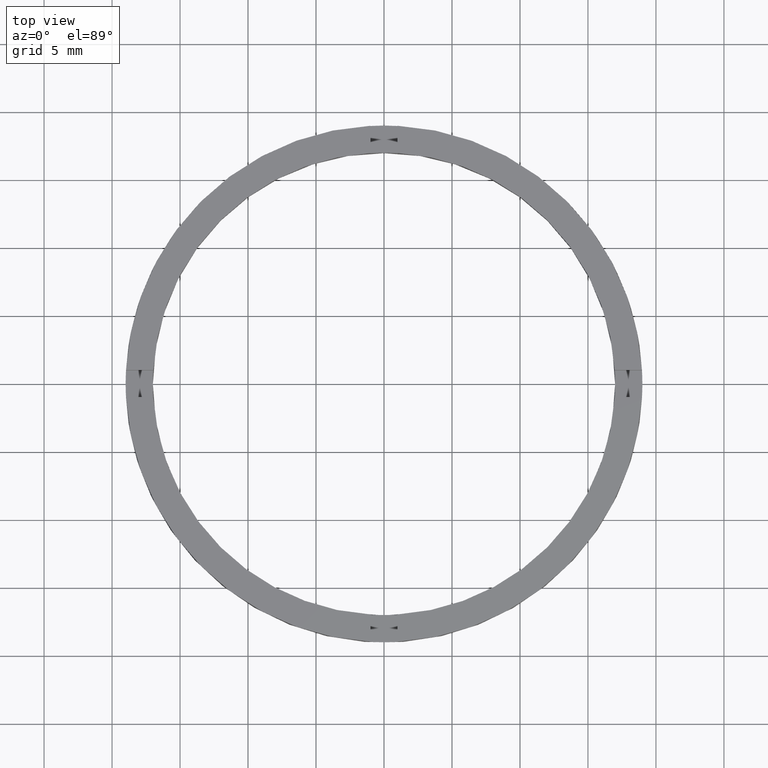
[diagram: clean part render]
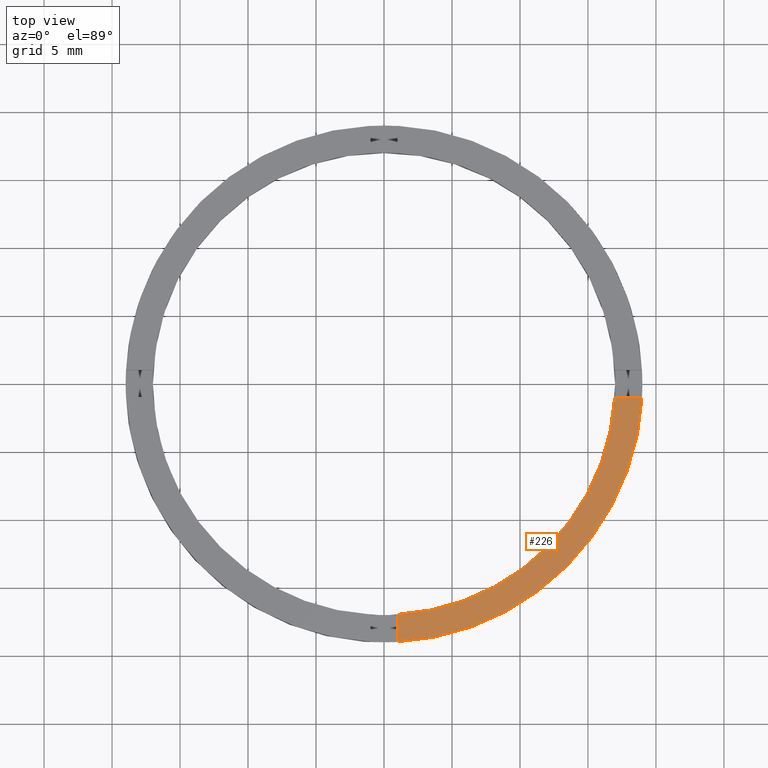
[diagram: same view with one face highlighted and labeled with its STEP entity id]
A machine part, top view. The second image highlights one B-rep face of the part: STEP entity #226.
In plain terms, the highlighted planar face has unit normal (0, 0, 1).
Its self-contained STEP definition (entity closure, byte-faithful):
#37 = ORIENTED_EDGE ( 'NONE', *, *, #529, .F. ) ;
#65 = VECTOR ( 'NONE', #447, 1000.000000000000000 ) ;
#84 = EDGE_CURVE ( 'NONE', #441, #210, #642, .T. ) ;
#91 = CARTESIAN_POINT ( 'NONE',  ( 0.000000000000000000, 0.000000000000000000, 2.500000000000000000 ) ) ;
#100 = FACE_OUTER_BOUND ( 'NONE', #500, .T. ) ;
#139 = AXIS2_PLACEMENT_3D ( 'NONE', #91, #273, #522 ) ;
#169 = CARTESIAN_POINT ( 'NONE',  ( 8.999999999999994671, -1.000000000000158984, 2.500000000000000000 ) ) ;
#210 = VERTEX_POINT ( 'NONE', #745 ) ;
#225 = VERTEX_POINT ( 'NONE', #383 ) ;
#226 = ADVANCED_FACE ( 'NONE', ( #100 ), #324, .T. ) ;
#249 = CARTESIAN_POINT ( 'NONE',  ( 16.97056274847713198, -1.000000000000158762, 2.500000000000000000 ) ) ;
#252 = AXIS2_PLACEMENT_3D ( 'NONE', #438, #680, #506 ) ;
#270 = VERTEX_POINT ( 'NONE', #249 ) ;
#273 = DIRECTION ( 'NONE',  ( 0.000000000000000000, 0.000000000000000000, 1.000000000000000000 ) ) ;
#324 = PLANE ( 'NONE',  #252 ) ;
#327 = DIRECTION ( 'NONE',  ( -1.301042606982605074E-16, 1.000000000000000000, -0.000000000000000000 ) ) ;
#342 = CIRCLE ( 'NONE', #139, 19.00000000000000000 ) ;
#365 = VECTOR ( 'NONE', #327, 1000.000000000000000 ) ;
#383 = CARTESIAN_POINT ( 'NONE',  ( 18.97366596101026914, -1.000000000000158540, 2.500000000000000000 ) ) ;
#412 = EDGE_CURVE ( 'NONE', #441, #225, #342, .T. ) ;
#438 = CARTESIAN_POINT ( 'NONE',  ( 0.000000000000000000, 0.000000000000000000, 2.500000000000000000 ) ) ;
#441 = VERTEX_POINT ( 'NONE', #466 ) ;
#447 = DIRECTION ( 'NONE',  ( 1.000000000000000000, 4.336808689942017120E-17, 0.000000000000000000 ) ) ;
#466 = CARTESIAN_POINT ( 'NONE',  ( 0.9999999999998375744, -18.97366596101028335, 2.500000000000000000 ) ) ;
#488 = ORIENTED_EDGE ( 'NONE', *, *, #758, .F. ) ;
#500 = EDGE_LOOP ( 'NONE', ( #488, #37, #543, #757 ) ) ;
#506 = DIRECTION ( 'NONE',  ( 1.000000000000000000, 0.000000000000000000, -0.000000000000000000 ) ) ;
#522 = DIRECTION ( 'NONE',  ( 1.000000000000000000, 0.000000000000000000, 0.000000000000000000 ) ) ;
#529 = EDGE_CURVE ( 'NONE', #210, #270, #532, .T. ) ;
#532 = CIRCLE ( 'NONE', #711, 17.00000000000000000 ) ;
#543 = ORIENTED_EDGE ( 'NONE', *, *, #84, .F. ) ;
#560 = CARTESIAN_POINT ( 'NONE',  ( 0.9999999999998366862, -9.000000000000179412, 2.500000000000000000 ) ) ;
#588 = LINE ( 'NONE', #169, #65 ) ;
#628 = CARTESIAN_POINT ( 'NONE',  ( 0.000000000000000000, 0.000000000000000000, 2.500000000000000000 ) ) ;
#642 = LINE ( 'NONE', #560, #365 ) ;
#680 = DIRECTION ( 'NONE',  ( 0.000000000000000000, 0.000000000000000000, 1.000000000000000000 ) ) ;
#691 = DIRECTION ( 'NONE',  ( 0.000000000000000000, 0.000000000000000000, 1.000000000000000000 ) ) ;
#711 = AXIS2_PLACEMENT_3D ( 'NONE', #628, #691, #760 ) ;
#745 = CARTESIAN_POINT ( 'NONE',  ( 0.9999999999998373523, -16.97056274847714974, 2.500000000000000000 ) ) ;
#757 = ORIENTED_EDGE ( 'NONE', *, *, #412, .T. ) ;
#758 = EDGE_CURVE ( 'NONE', #270, #225, #588, .T. ) ;
#760 = DIRECTION ( 'NONE',  ( 1.000000000000000000, 0.000000000000000000, 0.000000000000000000 ) ) ;